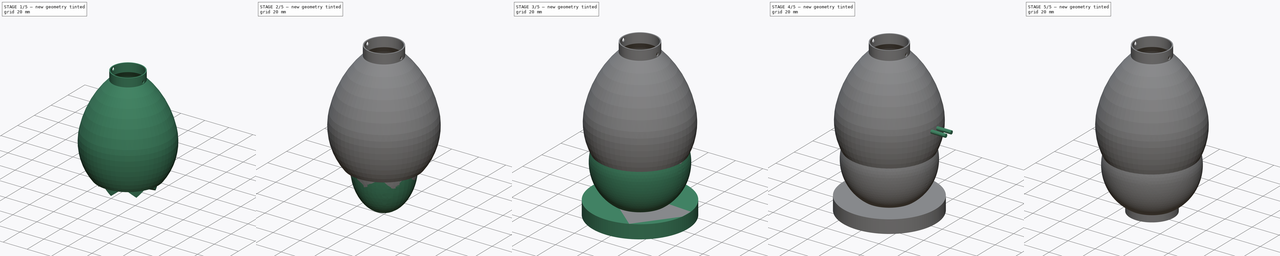
[diagram: build sequence overview — one tinted view per stage of 5, left to right]
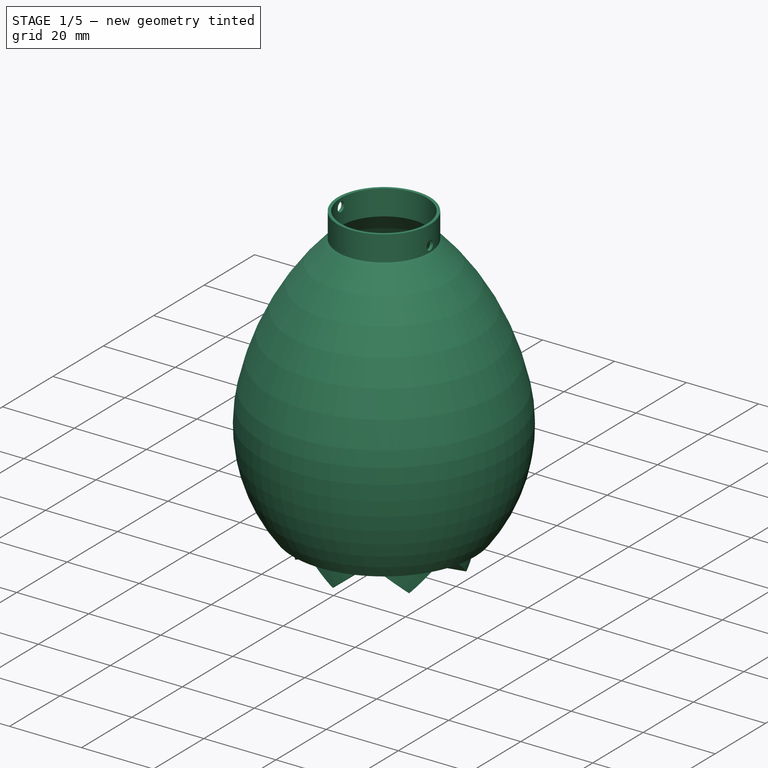
[diagram: stage 1 of 5 — iso view after this stage's code; geometry added in this stage tinted green]
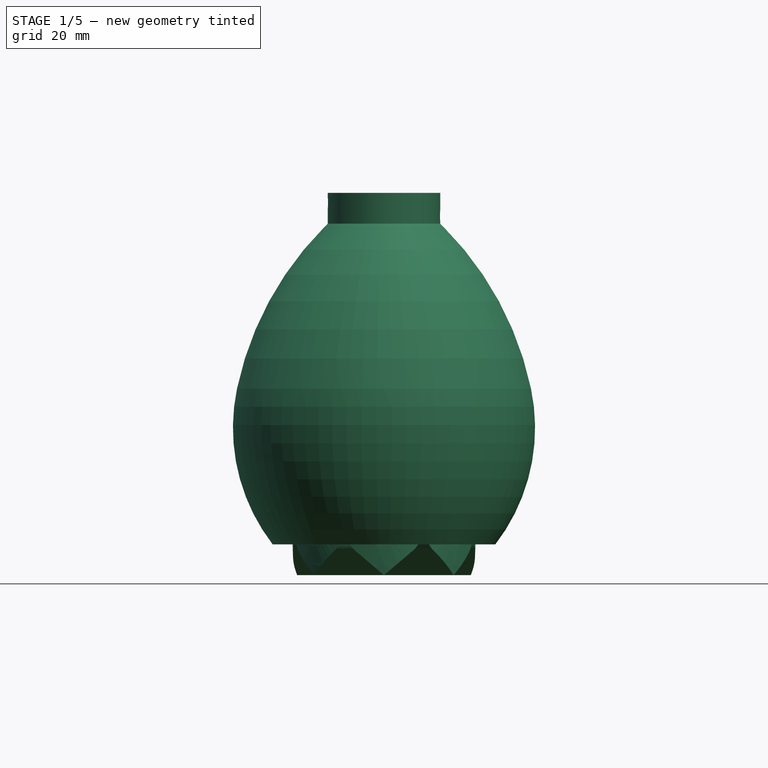
[diagram: stage 1 of 5 — front view after this stage's code; geometry added in this stage tinted green]
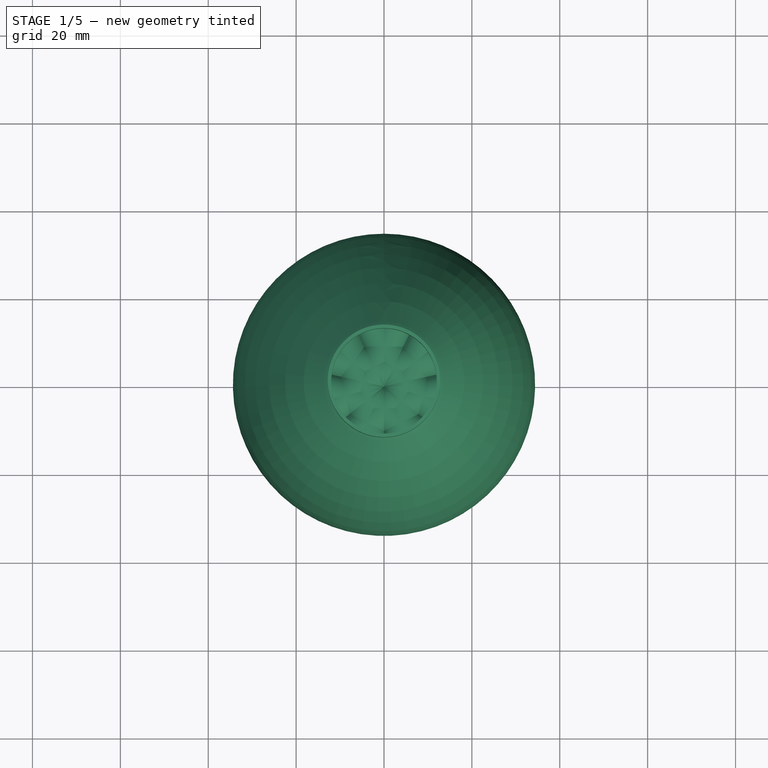
[diagram: stage 1 of 5 — top view after this stage's code; geometry added in this stage tinted green]
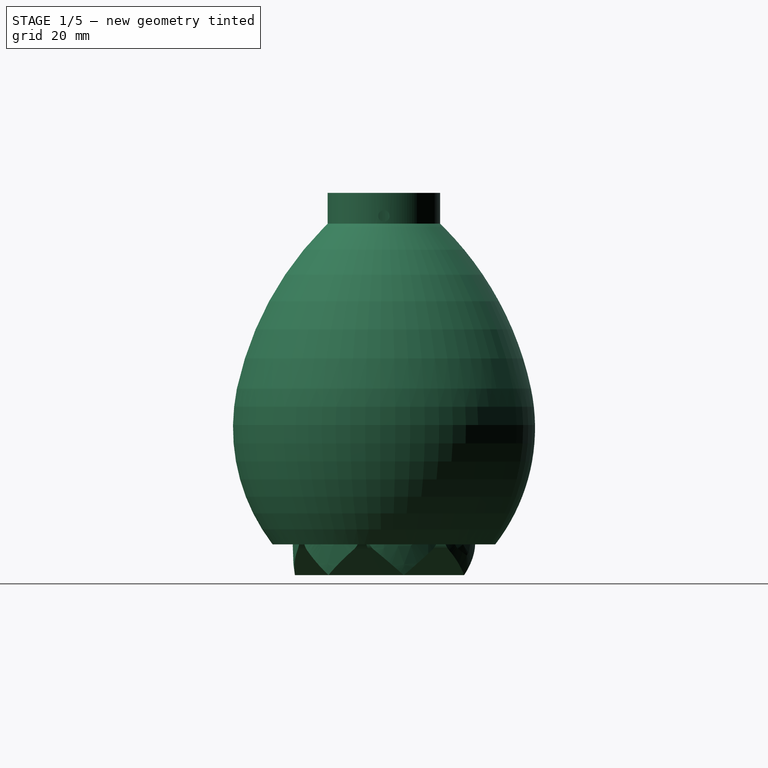
[diagram: stage 1 of 5 — right view after this stage's code; geometry added in this stage tinted green]
FCSTD DOCUMENT  (FreeCAD 0.19R)
Label: led_lantern_lamp_shade
License: All rights reserved
LicenseURL: http://en.wikipedia.org/wiki/All_rights_reserved
objects: Part::Cylinder×14, Part::MultiFuse×7, Part::Cut×7, Part::Sphere×5, Part::Ellipsoid×4, Sketcher::SketchObject×3, PartDesign::Body×2, Part::Extrusion×2, Part::FeaturePython×2, Part::MultiCommon×2, PartDesign::Revolution×1
note: 48 computed .brp shape members not serialized (recipe doc carries the construction recipe); baked Part::Feature solids carry a one-line shape summary decoded from their .brp

FEATURE [Sketcher::SketchObject] Sketch001
  MapMode = 5
  Placement = pos=(0,0,0) rot=(1,0,0;1.5708rad)
  Support = -> [XZ_Plane001]
  sketch-geometry (7):
    g0: ArcOfCircle CenterX=-3.93448 CenterY=1.97524 CenterZ=0 NormalX=0 NormalY=0 NormalZ=1 AngleXU=0 Radius=4.29593 StartAngle=0.413141 EndAngle=4.00852
    g1: ArcOfCircle CenterX=3.93448 CenterY=1.97524 CenterZ=0 NormalX=0 NormalY=0 NormalZ=1 AngleXU=0 Radius=4.29593 StartAngle=5.41626 EndAngle=9.01164
    g2: LineSegment StartX=-6.71469 StartY=-1.29974 StartZ=0 EndX=-7.02e-14 EndY=-7 EndZ=0
    g3: LineSegment StartX=-7.02e-14 StartY=-7 StartZ=0 EndX=6.71469 EndY=-1.29974 EndZ=0
    g4: LineSegment StartX=-7.02e-14 StartY=-7 StartZ=0 EndX=3.93448 EndY=1.97524 EndZ=0
    g5: LineSegment StartX=3.93448 StartY=1.97524 StartZ=0 EndX=0 EndY=3.7 EndZ=0
    g6: LineSegment StartX=3.93448 StartY=1.97524 StartZ=0 EndX=6.71469 EndY=-1.29974 EndZ=0
  constraints (18):
    c: Coincident(g1,g0)
    c: Equal(g0,g1)
    c: Horizontal(g1,g0)
    c: Horizontal(g1,g0)
    c: Coincident(g2,g3)
    c: Tangent(g3,g1) = -1.5708
    c: Tangent(g0,g2) = -1.5708
    c: Coincident(g4,g2)
    c: Coincident(g5,g0)
    c: Perpendicular(g4,g5)
    c: Coincident(g4,g5)
    c: Coincident(g1,g4)
    c: Coincident(g6,g1)
    c: Coincident(g6,g1)
    c: Angle(g5,g6) = 2.68781
    c: DistanceY(g2,g-1) = 7
    c: DistanceY(g-1,g0) = 3.7
    c: Vertical(g0,g-1)
FEATURE [Part::Extrusion] Extrude001
  Base = -> Sketch001
  Dir = (0,-1,-2e-16)
  DirMode = 2
  FaceMakerClass = Part::FaceMakerBullseye
  LengthFwd = 70
  LengthRev = 0
  Solid = true
  Symmetric = false
FEATURE [Part::FeaturePython] Array001  # Draft array (typed FeaturePython)
  Angle = 360
  ArrayType = 1
  Axis = (0,0,1)
  Base = -> Extrude001
  Center = (0,0,0)
  Count = 7
  ExpandArray = false
  Fuse = false
  IntervalAxis = (0,0,0)
  IntervalX = (1,0,0)
  IntervalY = (0,1,0)
  IntervalZ = (0,0,1)
  NumberCircles = 2
  NumberPolar = 7
  NumberX = 1
  NumberY = 1
  NumberZ = 1
  PlacementList = 7 placements: [(0,0,0),(0,0,0),(0,0,0),(0,0,0),(0,0,0),(0,0,0),(0,0,0)]
  RadialDistance = 1
  ScaleList = (7) [(1,1,1),(1,1,1),(1,1,1),(1,1,1),(1,1,1),(1,1,1),(1,1,1)]
  Symmetry = 1
  TangentialDistance = 1
FEATURE [Part::Ellipsoid] Ellipsoid002
  Angle1 = -90
  Angle2 = 90
  Angle3 = 360
  AttacherType = Attacher::AttachEngine3D
  Radius1 = 30.8
  Radius2 = 20.8
  Radius3 = 20.8
FEATURE [Part::MultiCommon] Common001
  Shapes = -> [Ellipsoid002,Array001]
FEATURE [Sketcher::SketchObject] Sketch002
  MapMode = 5
  Placement = pos=(0,0,0) rot=(0.57735,0.57735,0.57735;2.0944rad)
  Support = -> [YZ_Plane002]
  sketch-geometry (9):
    g0: LineSegment StartX=12 StartY=73 StartZ=0 EndX=12 EndY=80 EndZ=0
    g1: LineSegment StartX=12 StartY=80 StartZ=0 EndX=12.8 EndY=80 EndZ=0
    g2: LineSegment StartX=12.8 StartY=80 StartZ=0 EndX=12.8 EndY=73 EndZ=0
    g3: LineSegment StartX=12.8 StartY=73 StartZ=0 EndX=13.5071 EndY=72.2929 EndZ=0
    g4: ArcOfCircle CenterX=-38.4691 CenterY=20.3167 CenterZ=0 NormalX=0 NormalY=0 NormalZ=1 AngleXU=0 Radius=73.5055 StartAngle=0.207196 EndAngle=0.785398
    g5: ArcOfCircle CenterX=-8.97204 CenterY=26.5173 CenterZ=0 NormalX=0 NormalY=0 NormalZ=1 AngleXU=0 Radius=43.3637 StartAngle=5.62522 EndAngle=6.49038
    g6: LineSegment StartX=25.339 StartY=-3.6e-15 StartZ=0 EndX=24.739 EndY=-3.6e-15 EndZ=0
    g7: ArcOfCircle CenterX=-9.36927 CenterY=26.5173 CenterZ=0 NormalX=0 NormalY=0 NormalZ=1 AngleXU=0 Radius=43.2035 StartAngle=5.62235 EndAngle=6.49313
    g8: ArcOfCircle CenterX=-38.4691 CenterY=20.3167 CenterZ=0 NormalX=0 NormalY=0 NormalZ=1 AngleXU=0 Radius=72.9566 StartAngle=0.209942 EndAngle=0.80686
  constraints (27):
    c: Vertical(g0)
    c: Coincident(g0,g1)
    c: Coincident(g1,g2)
    c: Vertical(g2)
    c: Coincident(g3,g2)
    c: Angle(g3,g2) = 2.35619
    c: Distance(g3) = 1
    c: DistanceX(g1,g1) = 0.8
    c: DistanceY(g2,g2) = 7
    c: Horizontal(g1)
    c: Horizontal(g0,g2)
    c: DistanceY(g-1,g0) = 80
    c: DistanceX(g-1,g0) = 12
    c: Tangent(g4,g3) = 1.5708
    c: PointOnObject(g5,g-1)
    c: Tangent(g5,g4) = -1.5708
    c: DistanceX(g5) = -8.97204
    c: DistanceY(g5) = 26.5173
    c: DistanceX(g4) = -38.4691
    c: Coincident(g6,g5)
    c: Horizontal(g6)
    c: DistanceX(g6,g6) = 0.6
    c: Coincident(g7,g6)
    c: Coincident(g8,g4)
    c: Coincident(g8,g0)
    c: Tangent(g8,g7) = -1.5708
    c: Horizontal(g7,g5)
FEATURE [PartDesign::Revolution] Revolution
  Angle = 360
  Axis = (-2e-16,3e-16,1)
  Base = (0,0,0)
  Placement = pos=(0,0,0) rot=(0.57735,0.57735,0.57735;2.0944rad)
  Profile = -> Sketch002
  ReferenceAxis = -> Sketch002 [V_Axis]
  Reversed = true
FEATURE [PartDesign::Body] Body002
  Group = -> [Sketch002,Revolution]
  Origin = -> Origin002
  Tip = -> Revolution
FEATURE [Part::Cylinder] Cylinder012
  Angle = 360
  AttacherType = Attacher::AttachEngine3D
  Height = 80
  Placement = pos=(-8e-16,0,74.75) rot=(0,1,0;1.5708rad)
  Radius = 1.3
FEATURE [Part::Cylinder] Cylinder013
  Angle = 360
  AttacherType = Attacher::AttachEngine3D
  Height = 80
  Placement = pos=(-74.75,0,77.75) rot=(0,1,0;1.5708rad)
  Radius = 1.3
FEATURE [Part::MultiFuse] Fusion006
  Shapes = -> [Cylinder012,Cylinder013]
FEATURE [Part::Cut] Cut006  label="LanternLampShade"
  Base = -> Revolution
  Refine = true
  Tool = -> Fusion006
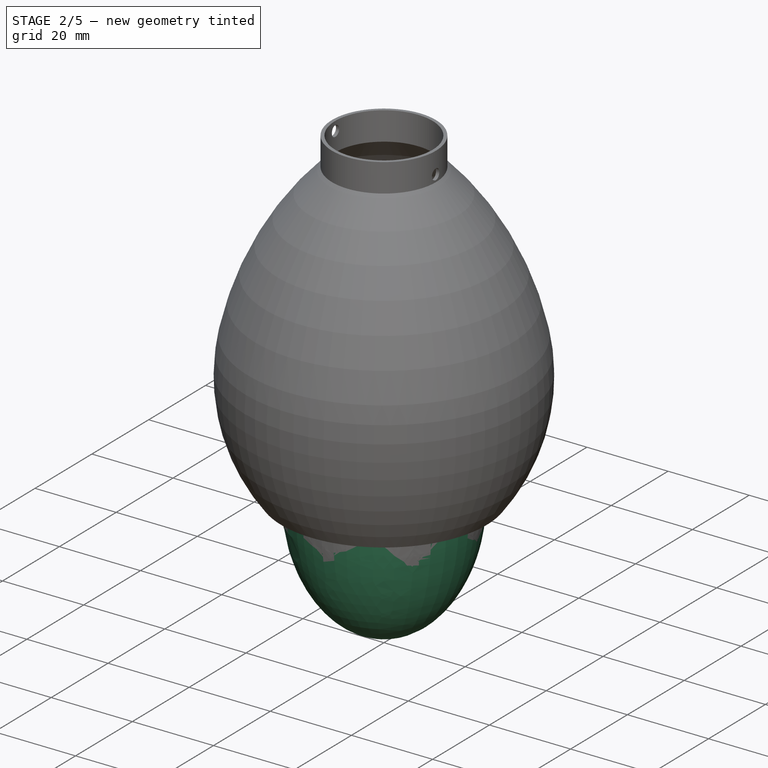
[diagram: stage 2 of 5 — iso view after this stage's code; geometry added in this stage tinted green]
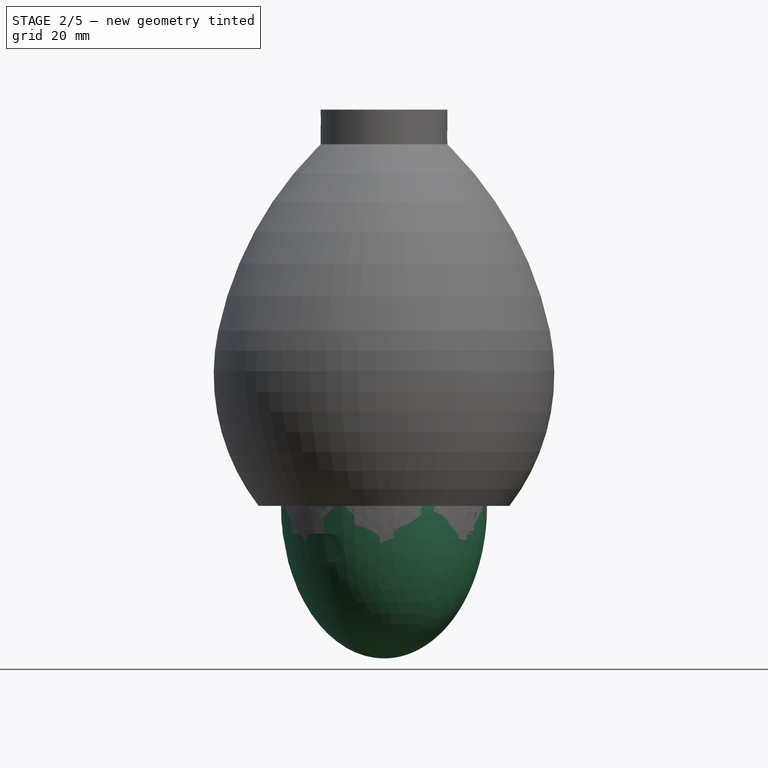
[diagram: stage 2 of 5 — front view after this stage's code; geometry added in this stage tinted green]
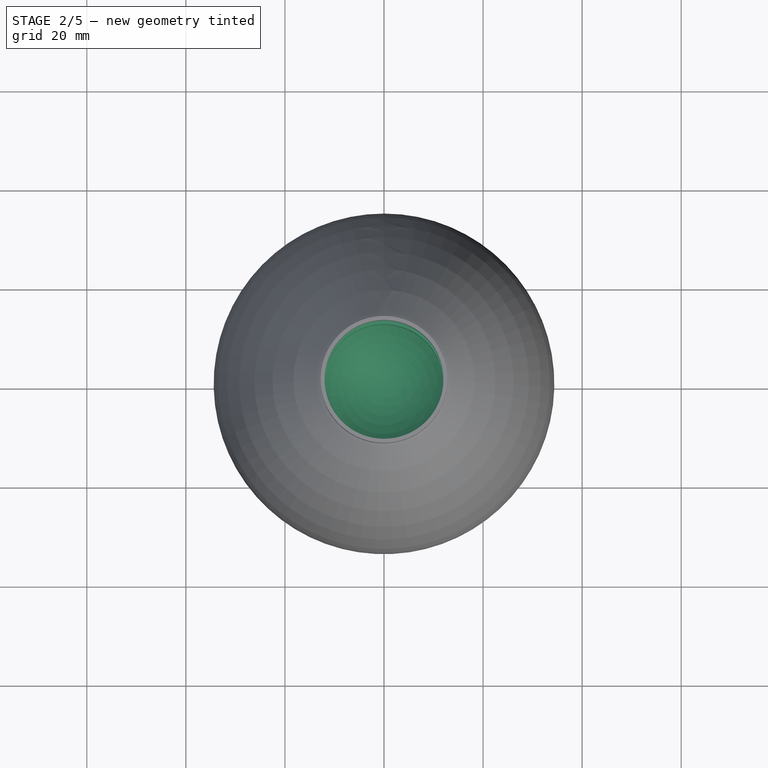
[diagram: stage 2 of 5 — top view after this stage's code; geometry added in this stage tinted green]
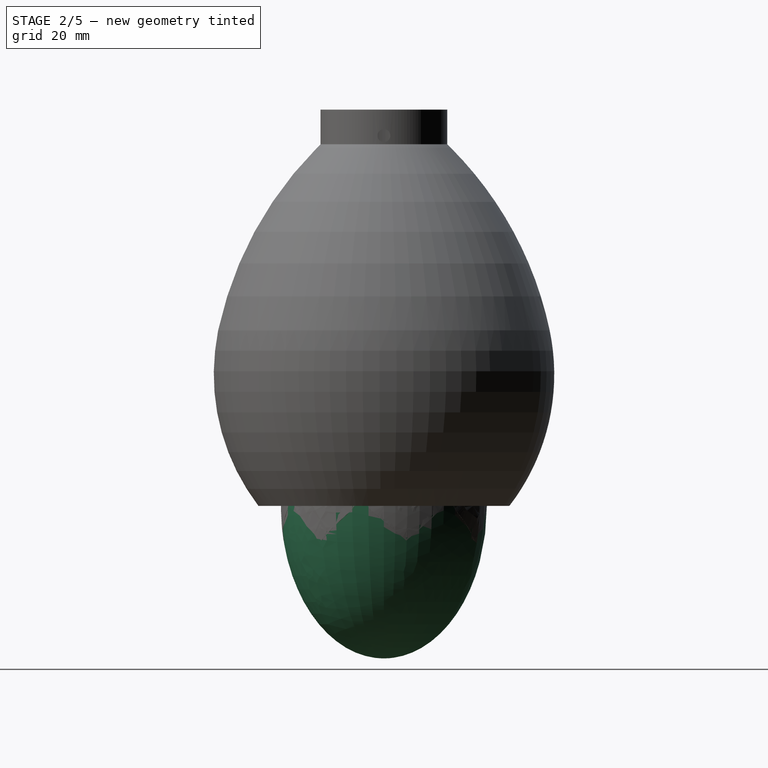
[diagram: stage 2 of 5 — right view after this stage's code; geometry added in this stage tinted green]
FEATURE [Part::Cylinder] Cylinder006
  Angle = 360
  AttacherType = Attacher::AttachEngine3D
  Height = 10
  Placement = pos=(0,0,21) rot=(0,0,1;0rad)
  Radius = 12
FEATURE [Part::Cylinder] Cylinder007
  Angle = 360
  AttacherType = Attacher::AttachEngine3D
  Height = 6
  Placement = pos=(0,0,23) rot=(0,0,1;0rad)
  Radius = 13.2
FEATURE [Part::Cylinder] Cylinder008
  Angle = 360
  AttacherType = Attacher::AttachEngine3D
  Height = 80
  Placement = pos=(-35,3,26) rot=(0,1,0;1.5708rad)
  Radius = 1.3
FEATURE [Part::Cylinder] Cylinder011
  Angle = 360
  AttacherType = Attacher::AttachEngine3D
  Height = 80
  Placement = pos=(-35,-3,26) rot=(0,1,0;1.5708rad)
  Radius = 1.3
FEATURE [Part::Ellipsoid] Ellipsoid
  Angle1 = -90
  Angle2 = 90
  Angle3 = 360
  AttacherType = Attacher::AttachEngine3D
  Radius1 = 30.8
  Radius2 = 20.8
  Radius3 = 20.8
FEATURE [Part::MultiFuse] Fusion003
  Shapes = -> [Ellipsoid,Cylinder007]
FEATURE [Part::Ellipsoid] Ellipsoid001
  Angle1 = -90
  Angle2 = 90
  Angle3 = 360
  AttacherType = Attacher::AttachEngine3D
  Radius1 = 30
  Radius2 = 20
  Radius3 = 20
FEATURE [Part::MultiFuse] Fusion004
  Refine = true
  Shapes = -> [Ellipsoid001,Cylinder008,Cylinder006,Cylinder011]
FEATURE [Part::Cut] Cut003
  Base = -> Fusion003
  Refine = true
  Tool = -> Fusion004
FEATURE [Part::Ellipsoid] Ellipsoid003
  Angle1 = -90
  Angle2 = 90
  Angle3 = 360
  AttacherType = Attacher::AttachEngine3D
  Radius1 = 29.8
  Radius2 = 19.8
  Radius3 = 19.8
FEATURE [Part::Cut] Cut004
  Base = -> Common001
  Refine = true
  Tool = -> Ellipsoid003
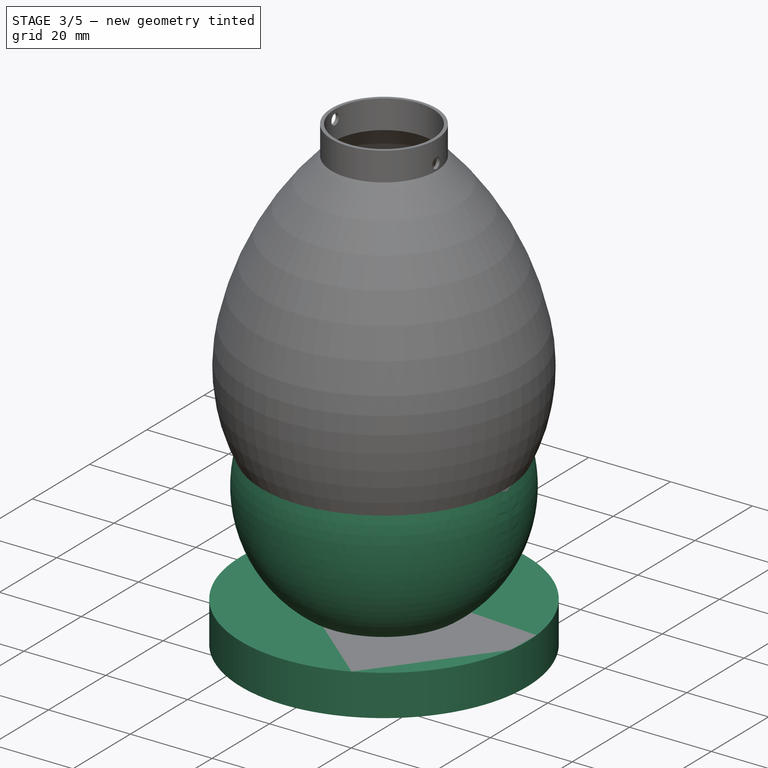
[diagram: stage 3 of 5 — iso view after this stage's code; geometry added in this stage tinted green]
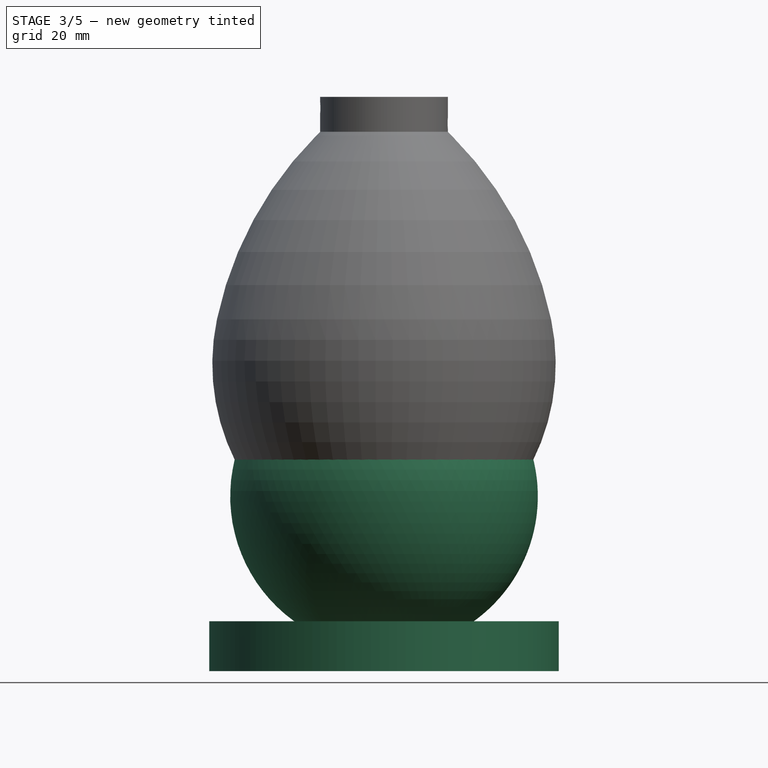
[diagram: stage 3 of 5 — front view after this stage's code; geometry added in this stage tinted green]
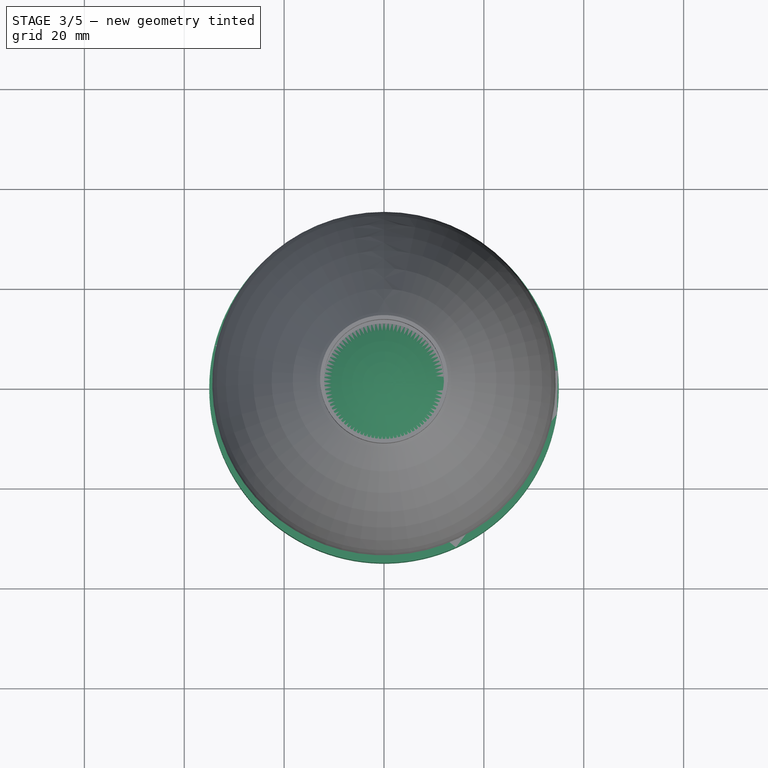
[diagram: stage 3 of 5 — top view after this stage's code; geometry added in this stage tinted green]
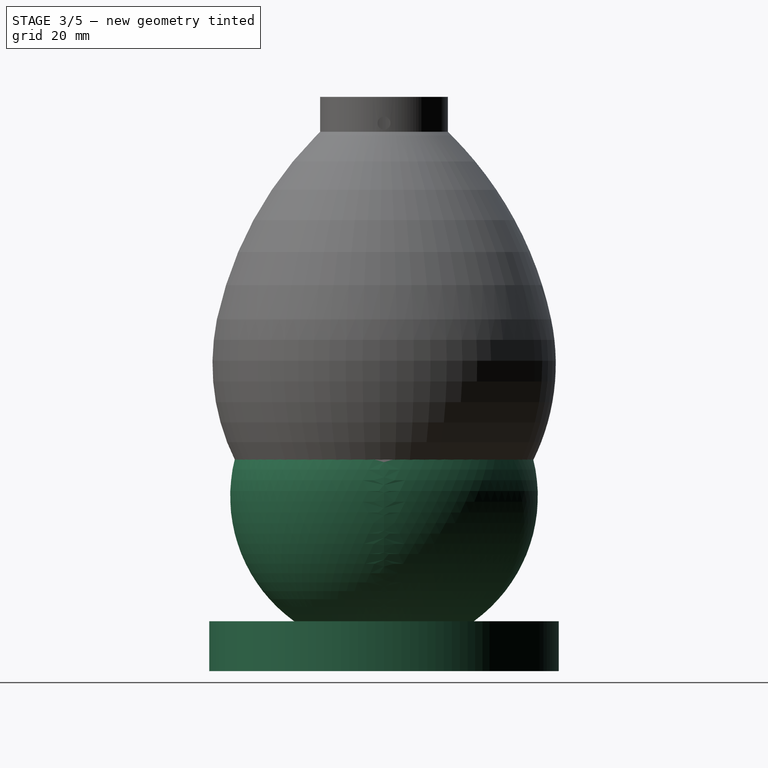
[diagram: stage 3 of 5 — right view after this stage's code; geometry added in this stage tinted green]
FEATURE [Part::Sphere] Sphere002
  Angle1 = -90
  Angle2 = 90
  Angle3 = 360
  AttacherType = Attacher::AttachEngine3D
  Radius = 29.8
FEATURE [Part::Cylinder] Cylinder005
  Angle = 360
  AttacherType = Attacher::AttachEngine3D
  Height = 10
  Placement = pos=(0,0,-35) rot=(0,0,1;0rad)
  Radius = 35
FEATURE [Part::Sphere] Sphere003
  Angle1 = -90
  Angle2 = 90
  Angle3 = 360
  AttacherType = Attacher::AttachEngine3D
  Radius = 30.8
FEATURE [Part::Cylinder] Cylinder009
  Angle = 360
  AttacherType = Attacher::AttachEngine3D
  Height = 10
  Placement = pos=(0,0,-31) rot=(0,0,1;0rad)
  Radius = 16.2
FEATURE [Part::Cylinder] Cylinder010
  Angle = 360
  AttacherType = Attacher::AttachEngine3D
  Height = 10
  Placement = pos=(0,0,-35) rot=(0,0,1;0rad)
  Radius = 35
FEATURE [Part::Sphere] Sphere005
  Angle1 = -90
  Angle2 = 90
  Angle3 = 360
  AttacherType = Attacher::AttachEngine3D
  Radius = 29.8
FEATURE [Part::MultiFuse] Fusion005
  Shapes = -> [Cut004,Cut003]
FEATURE [Part::Cut] Cut005
  Base = -> Fusion005
  Tool = -> Cylinder010
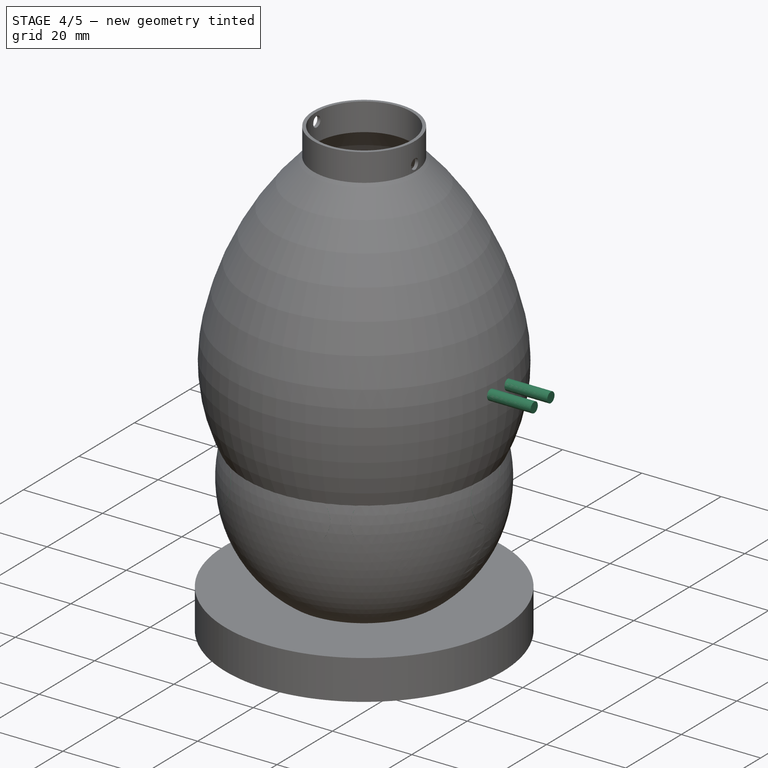
[diagram: stage 4 of 5 — iso view after this stage's code; geometry added in this stage tinted green]
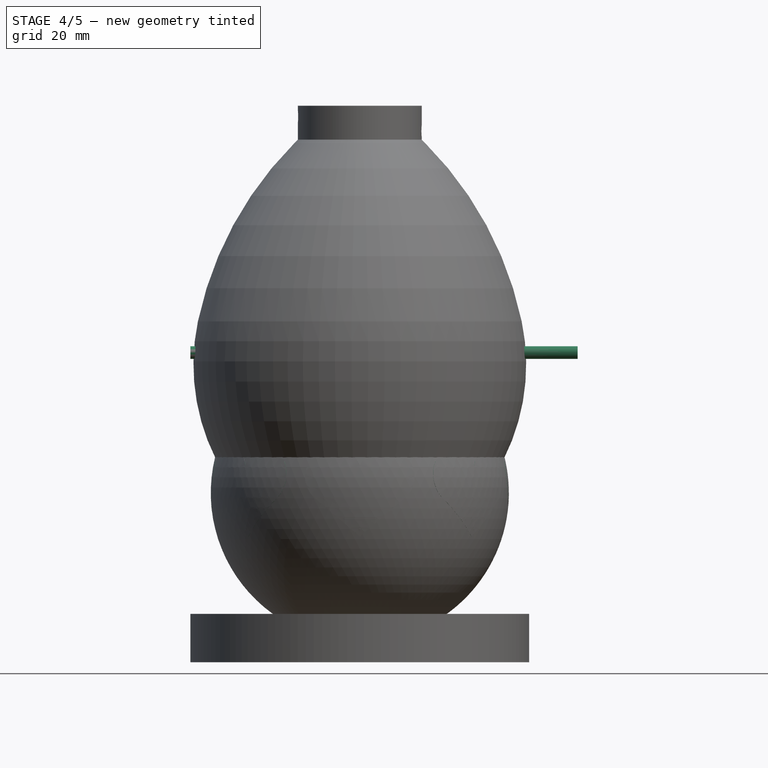
[diagram: stage 4 of 5 — front view after this stage's code; geometry added in this stage tinted green]
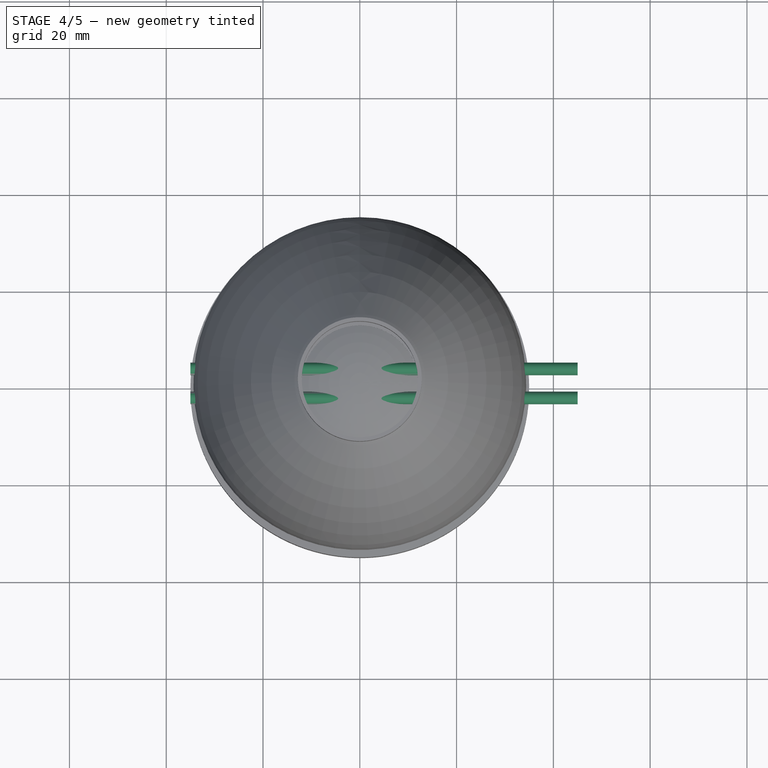
[diagram: stage 4 of 5 — top view after this stage's code; geometry added in this stage tinted green]
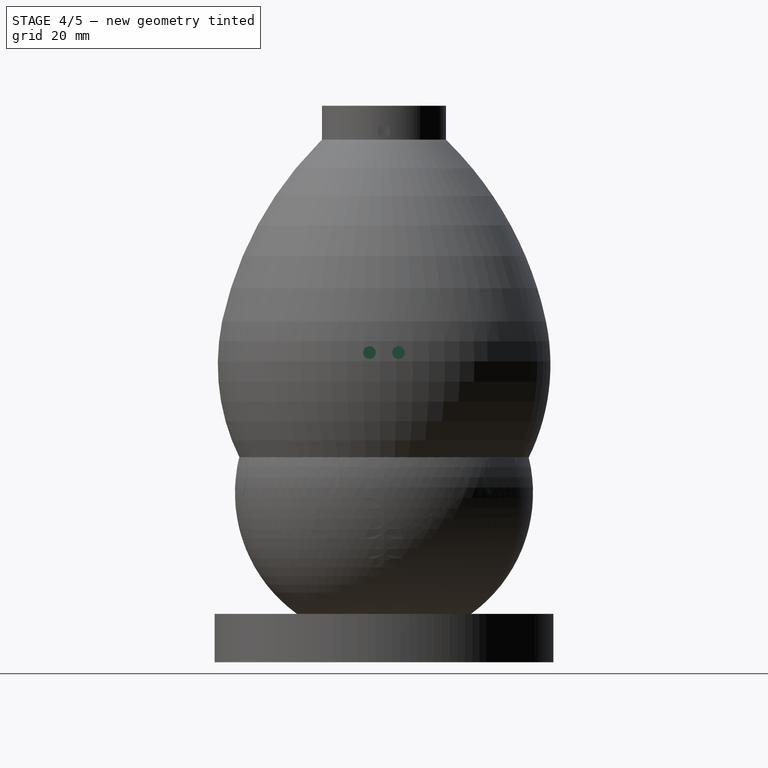
[diagram: stage 4 of 5 — right view after this stage's code; geometry added in this stage tinted green]
FEATURE [Part::Sphere] Sphere001
  Angle1 = -90
  Angle2 = 90
  Angle3 = 360
  AttacherType = Attacher::AttachEngine3D
  Radius = 30.8
FEATURE [Part::Cylinder] Cylinder001
  Angle = 360
  AttacherType = Attacher::AttachEngine3D
  Height = 80
  Placement = pos=(-35,3,29) rot=(0,1,0;1.5708rad)
  Radius = 1.3
FEATURE [Part::Cylinder] Cylinder003
  Angle = 360
  AttacherType = Attacher::AttachEngine3D
  Height = 10
  Placement = pos=(0,0,-31) rot=(0,0,1;0rad)
  Radius = 16.2
FEATURE [Part::Cylinder] Cylinder004
  Angle = 360
  AttacherType = Attacher::AttachEngine3D
  Height = 80
  Placement = pos=(-35,-3,29) rot=(0,1,0;1.5708rad)
  Radius = 1.3
FEATURE [Sketcher::SketchObject] Sketch
  MapMode = 5
  Placement = pos=(0,0,0) rot=(1,0,0;1.5708rad)
  Support = -> [XZ_Plane]
  sketch-geometry (7):
    g0: ArcOfCircle CenterX=-5.40532 CenterY=3.33046 CenterZ=0 NormalX=0 NormalY=0 NormalZ=1 AngleXU=0 Radius=5.90188 StartAngle=0.413141 EndAngle=4.00852
    g1: ArcOfCircle CenterX=5.40532 CenterY=3.33046 CenterZ=0 NormalX=0 NormalY=0 NormalZ=1 AngleXU=0 Radius=5.90188 StartAngle=5.41626 EndAngle=9.01164
    g2: LineSegment StartX=-9.22485 StartY=-1.1688 StartZ=0 EndX=1.8e-15 EndY=-9 EndZ=0
    g3: LineSegment StartX=1.8e-15 StartY=-9 StartZ=0 EndX=9.22485 EndY=-1.1688 EndZ=0
    g4: LineSegment StartX=1.8e-15 StartY=-9 StartZ=0 EndX=5.40532 EndY=3.33046 EndZ=0
    g5: LineSegment StartX=5.40532 StartY=3.33046 StartZ=0 EndX=0 EndY=5.7 EndZ=0
    g6: LineSegment StartX=5.40532 StartY=3.33046 StartZ=0 EndX=9.22485 EndY=-1.1688 EndZ=0
  constraints (18):
    c: Coincident(g1,g0)
    c: Equal(g0,g1)
    c: Horizontal(g1,g0)
    c: Horizontal(g1,g0)
    c: Coincident(g2,g3)
    c: Tangent(g3,g1) = -1.5708
    c: Tangent(g0,g2) = -1.5708
    c: Coincident(g4,g2)
    c: Coincident(g5,g0)
    c: Perpendicular(g4,g5)
    c: Coincident(g4,g5)
    c: Coincident(g1,g4)
    c: Coincident(g6,g1)
    c: Coincident(g6,g1)
    c: Angle(g5,g6) = 2.68781
    c: DistanceY(g2,g-1) = 9
    c: DistanceY(g-1,g0) = 5.7
    c: Vertical(g0,g-1)
FEATURE [PartDesign::Body] Body
  Group = -> [Sketch]
  Origin = -> Origin
FEATURE [Part::Extrusion] Extrude
  Base = -> Sketch
  Dir = (0,-1,2e-16)
  DirMode = 2
  FaceMakerClass = Part::FaceMakerBullseye
  LengthFwd = 70
  LengthRev = 0
  Solid = true
  Symmetric = false
FEATURE [Part::FeaturePython] Array  # Draft array (typed FeaturePython)
  Angle = 360
  ArrayType = 1
  Axis = (0,0,1)
  Base = -> Extrude
  Center = (0,0,0)
  Count = 7
  ExpandArray = false
  Fuse = false
  IntervalAxis = (0,0,0)
  IntervalX = (1,0,0)
  IntervalY = (0,1,0)
  IntervalZ = (0,0,1)
  NumberCircles = 2
  NumberPolar = 7
  NumberX = 1
  NumberY = 1
  NumberZ = 1
  PlacementList = 7 placements: [(0,0,0),(0,0,0),(0,0,0),(0,0,0),(0,0,0),(0,0,0),(0,0,0)]
  RadialDistance = 1
  ScaleList = (7) [(1,1,1),(1,1,1),(1,1,1),(1,1,1),(1,1,1),(1,1,1),(1,1,1)]
  Symmetry = 1
  TangentialDistance = 1
FEATURE [Part::MultiCommon] Common
  Shapes = -> [Sphere001,Array]
FEATURE [Part::Cut] Cut001
  Base = -> Common
  Refine = true
  Tool = -> Sphere002
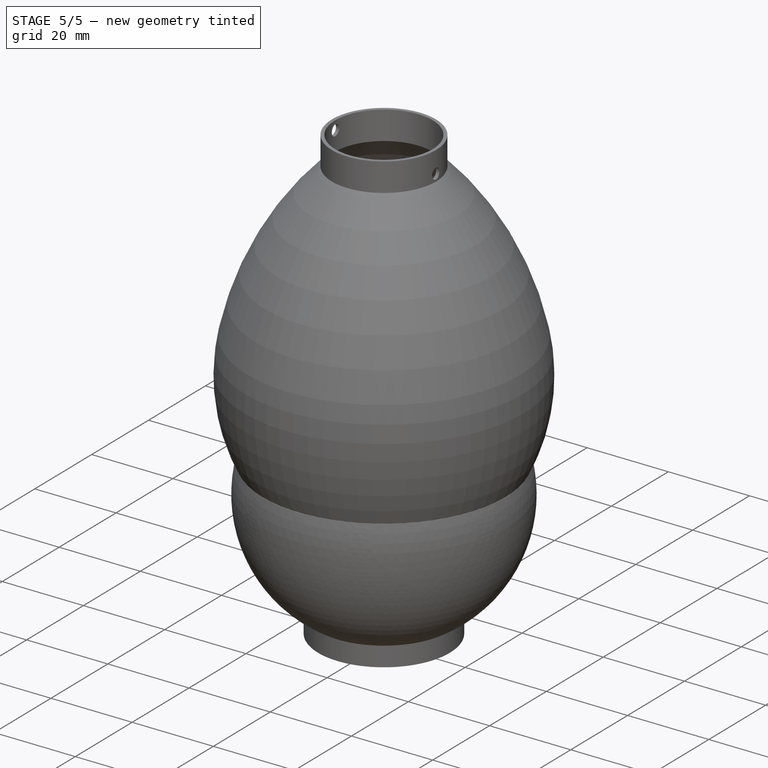
[diagram: stage 5 of 5 — iso view after this stage's code; geometry added in this stage tinted green]
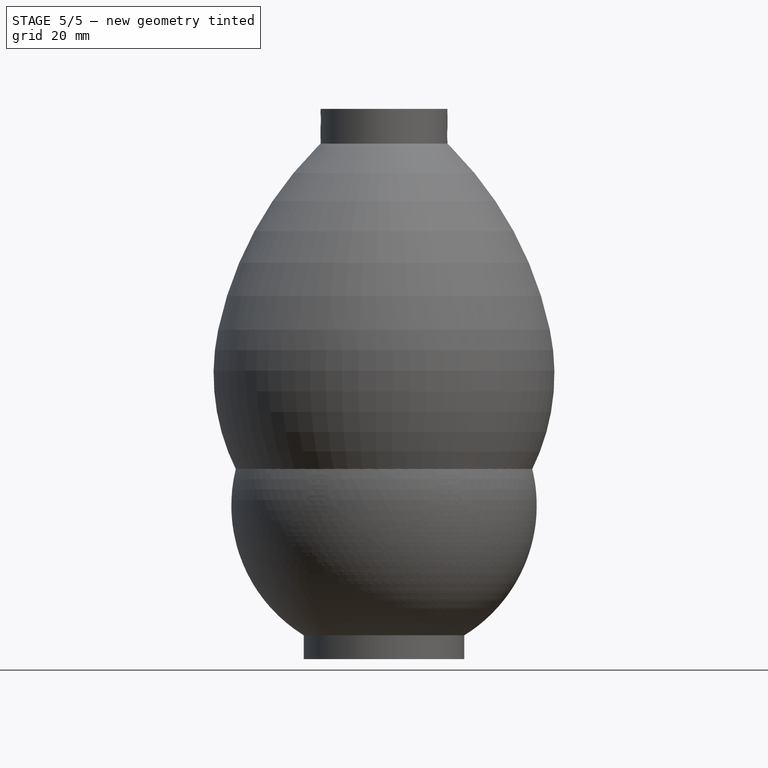
[diagram: stage 5 of 5 — front view after this stage's code; geometry added in this stage tinted green]
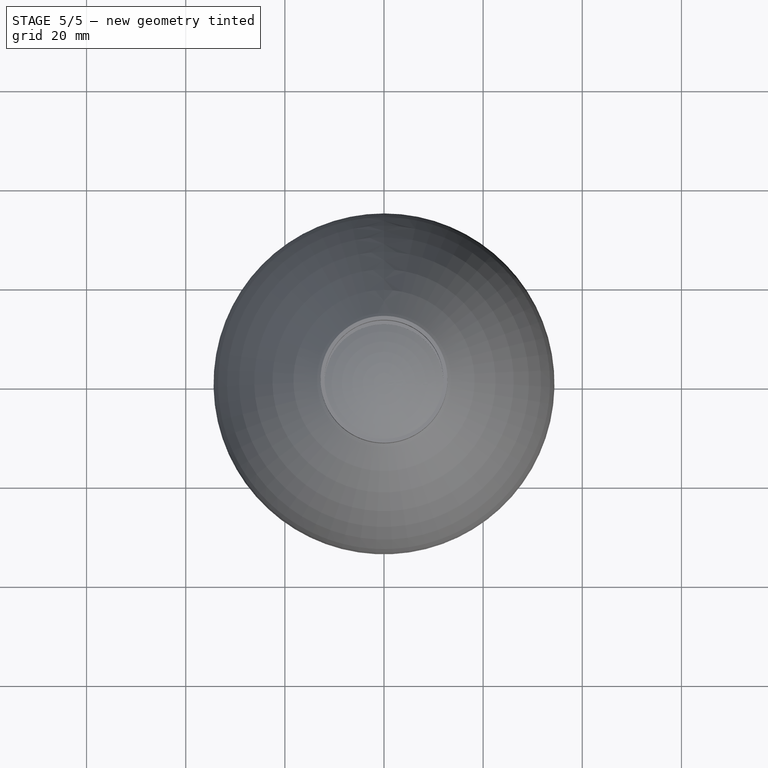
[diagram: stage 5 of 5 — top view after this stage's code; geometry added in this stage tinted green]
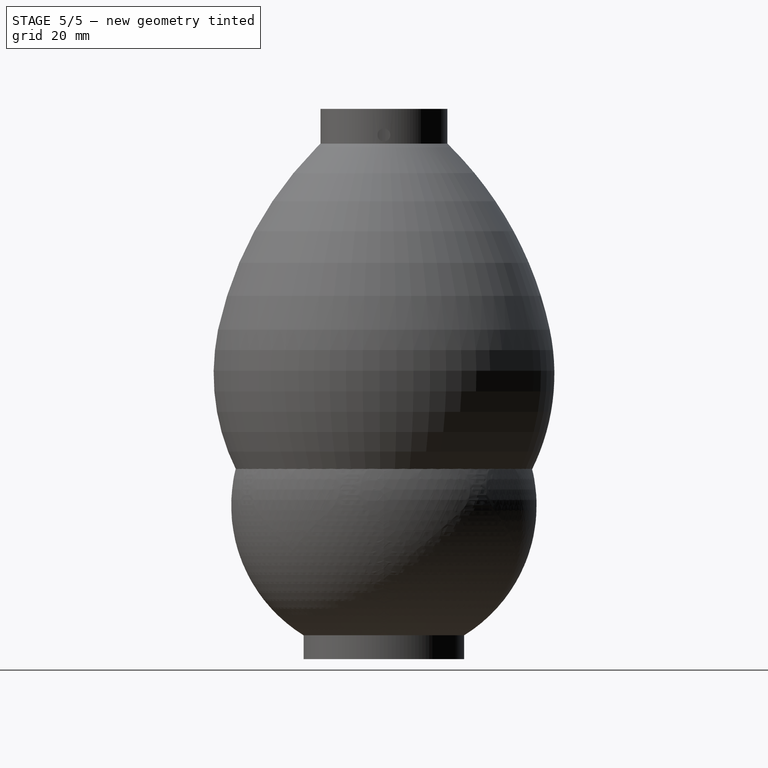
[diagram: stage 5 of 5 — right view after this stage's code; geometry added in this stage tinted green]
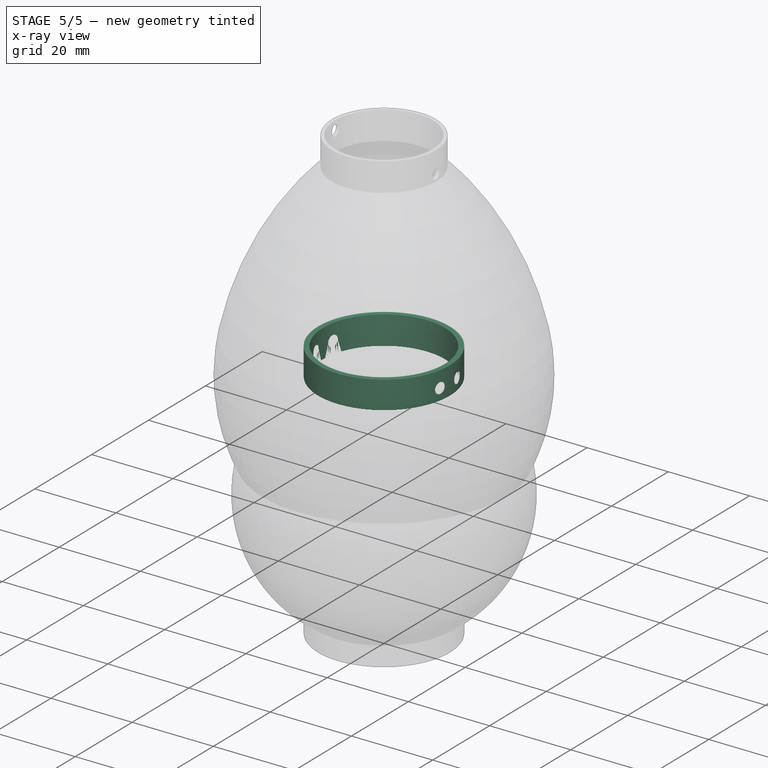
[diagram: stage 5 of 5 — x-ray composite at the iso view; earlier geometry ghosted, this stage's added geometry solid]
FEATURE [Part::Sphere] Sphere
  Angle1 = -90
  Angle2 = 90
  Angle3 = 360
  AttacherType = Attacher::AttachEngine3D
  Radius = 30
FEATURE [Part::Cylinder] Cylinder
  Angle = 360
  AttacherType = Attacher::AttachEngine3D
  Height = 10
  Placement = pos=(0,0,23) rot=(0,0,1;0rad)
  Radius = 15
FEATURE [Part::Cylinder] Cylinder002
  Angle = 360
  AttacherType = Attacher::AttachEngine3D
  Height = 10
  Placement = pos=(0,0,23) rot=(0,0,1;0rad)
  Radius = 16.2
FEATURE [Part::MultiFuse] Fusion
  Shapes = -> [Sphere001,Cylinder002]
FEATURE [Part::MultiFuse] Fusion001
  Shapes = -> [Cylinder003,Cylinder001,Cylinder,Sphere,Cylinder004]
FEATURE [Part::Cut] Cut
  Base = -> Fusion
  Refine = true
  Tool = -> Fusion001
FEATURE [Part::MultiFuse] Fusion002
  Shapes = -> [Cut001,Cut]
FEATURE [Part::Cut] Cut002
  Base = -> Fusion002
  Tool = -> Cylinder005
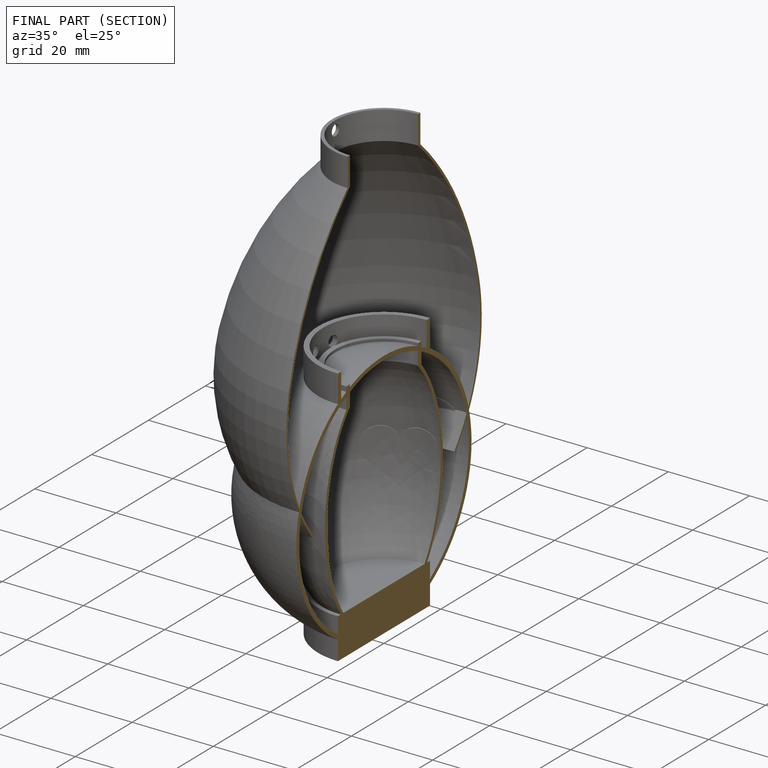
[diagram: finished part — half-section view (interior)]
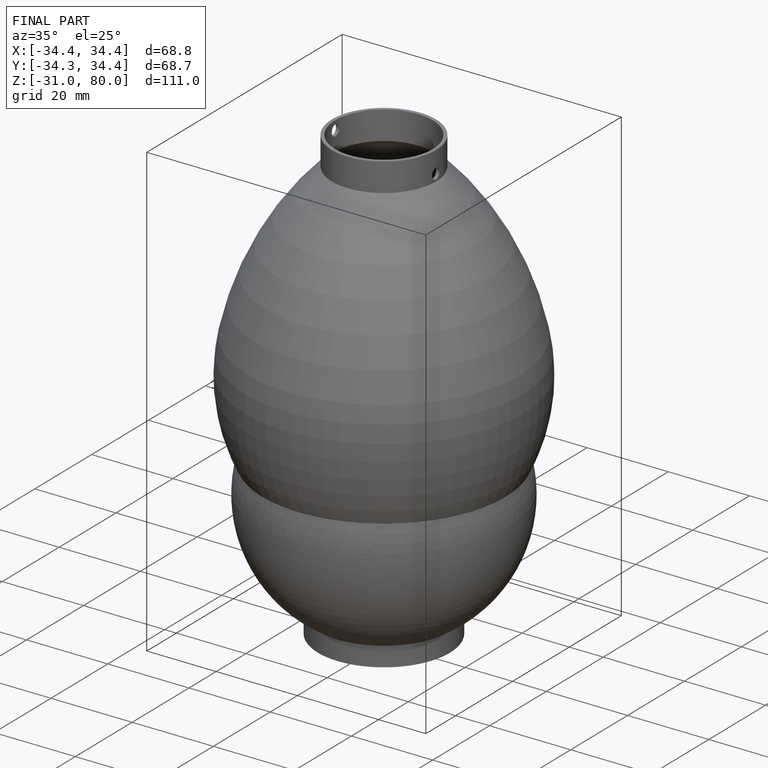
[diagram: finished part — iso view with bounding-box wireframe]
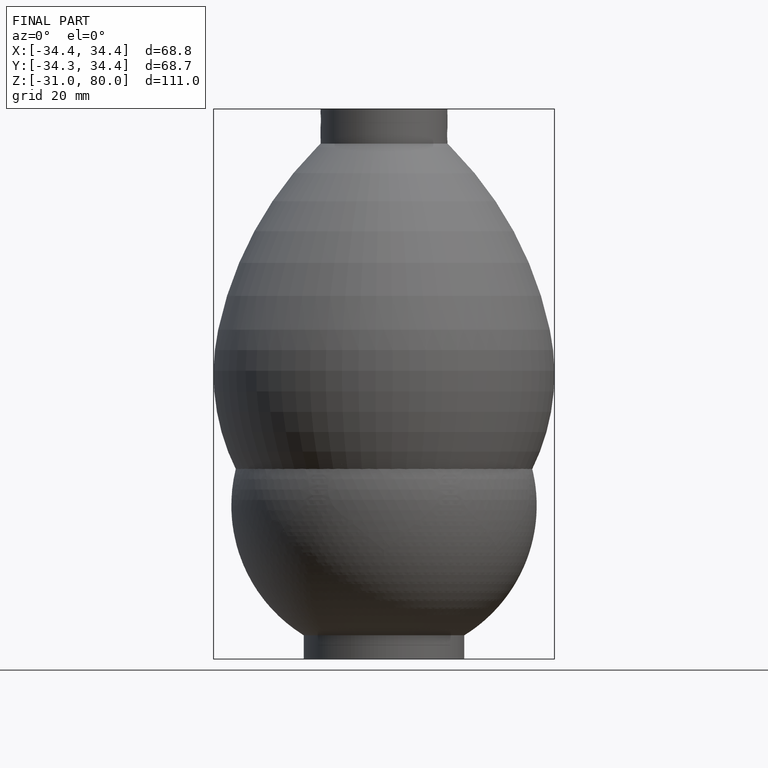
[diagram: finished part — front view with bounding-box wireframe]
